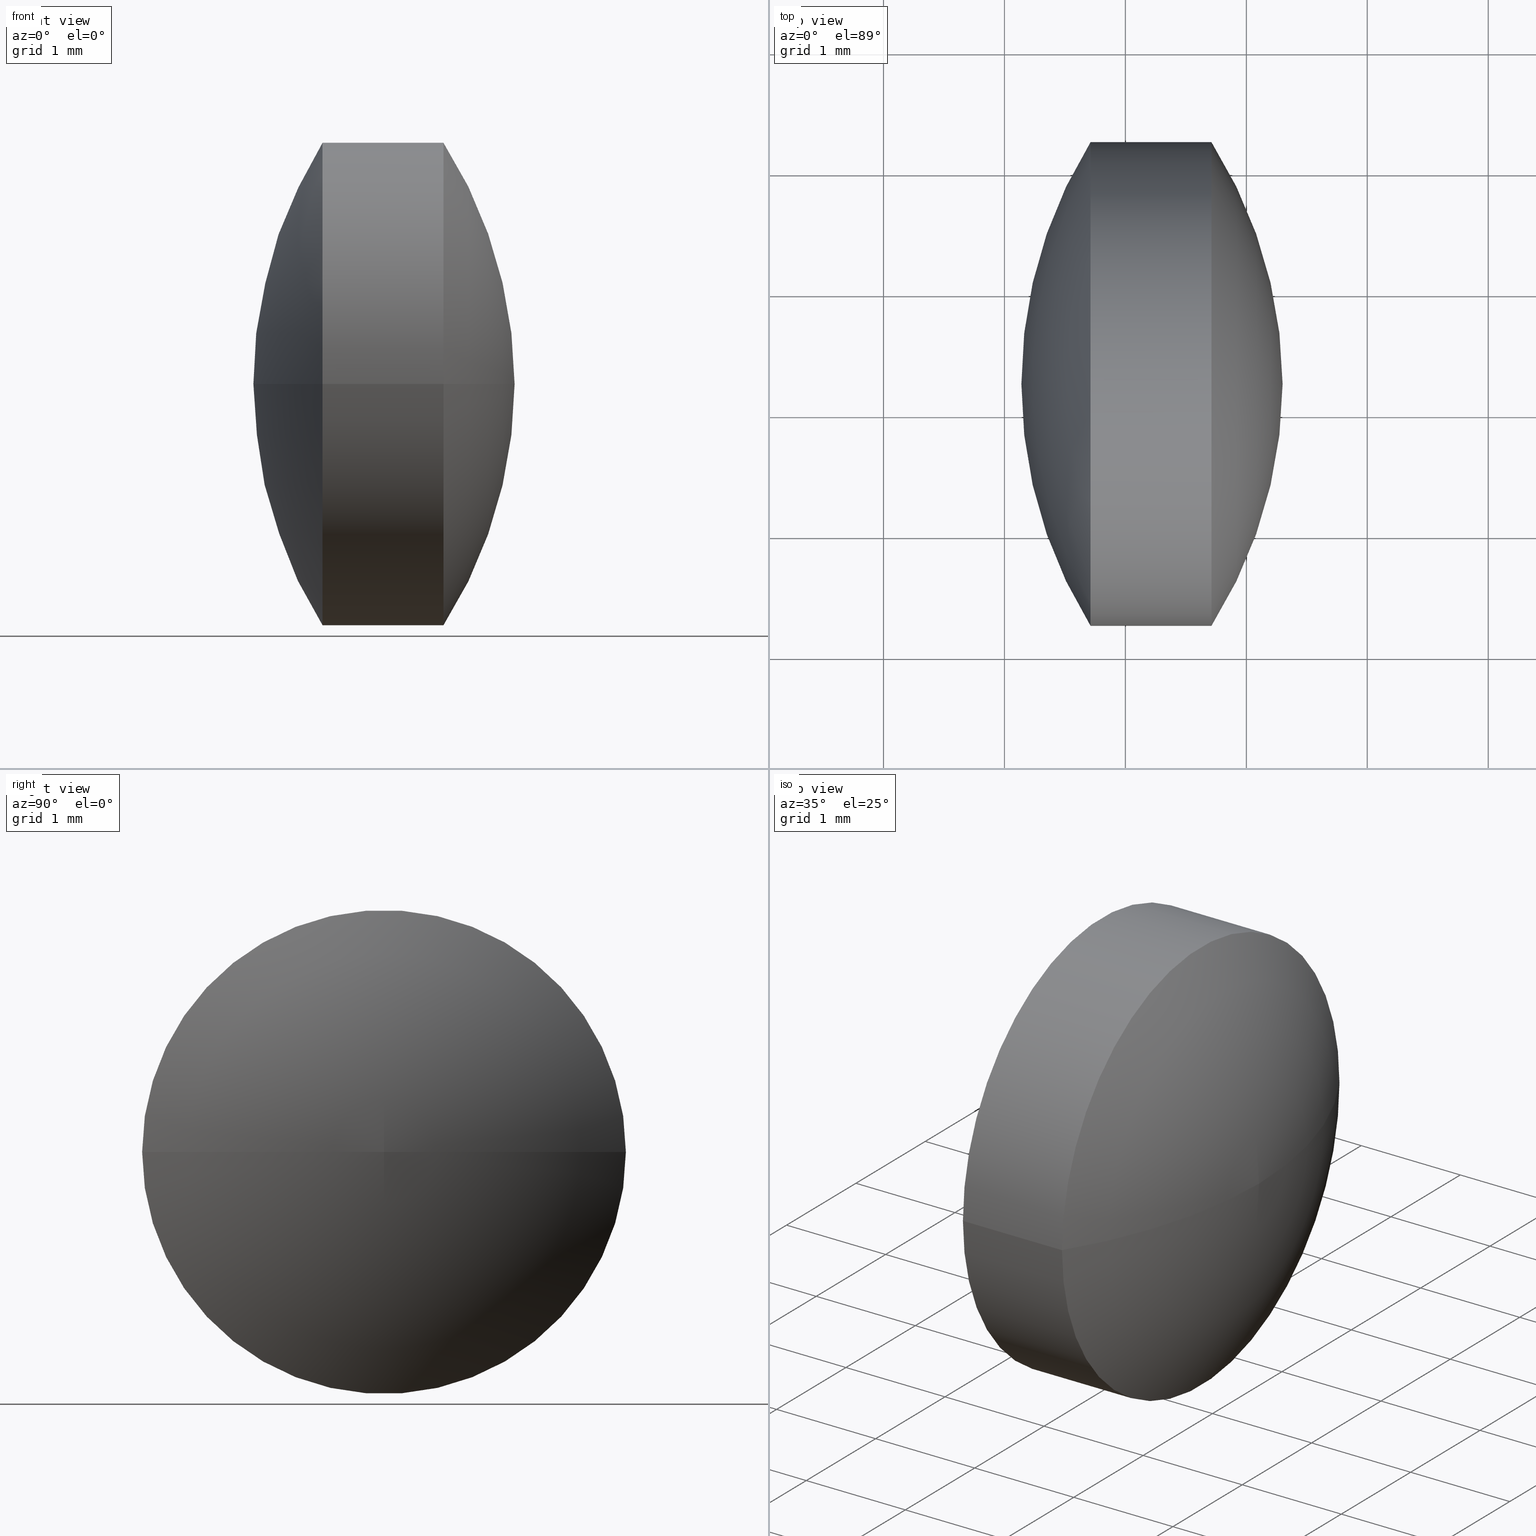
[diagram: canonical four-view strip — front | top / right | iso, engineering-drawing reading convention]
A machine part, canonical four-view strip (front | top / right | iso — engineering-drawing reading convention). The complete STEP part file that produces these views, byte-faithful:
ISO-10303-21;
HEADER;
FILE_DESCRIPTION (( 'STEP AP203' ),
    '1' );
FILE_NAME ('110004.STEP',
    '2019-06-24T05:50:44',
    ( '' ),
    ( '' ),
    'SwSTEP 2.0',
    'SolidWorks 2016',
    '' );
FILE_SCHEMA (( 'CONFIG_CONTROL_DESIGN' ));
ENDSEC;

DATA;
#1 = APPLICATION_PROTOCOL_DEFINITION ( 'international standard', 'config_control_design', 1994, #194 ) ;
#2 = ADVANCED_FACE ( 'NONE', ( #127 ), #168, .T. ) ;
#3 = PERSON_AND_ORGANIZATION ( #88, #112 ) ;
#4 = APPLICATION_CONTEXT ( 'configuration controlled 3d designs of mechanical parts and assemblies' ) ;
#5 = DIRECTION ( 'NONE',  ( 1.000000000000000000, 0.0000000000000000000, 0.0000000000000000000 ) ) ;
#6 = APPROVAL_STATUS ( 'not_yet_approved' ) ;
#7 = PERSON_AND_ORGANIZATION ( #88, #112 ) ;
#8 = APPROVAL_PERSON_ORGANIZATION ( #34, #302, #262 ) ;
#9 = AXIS2_PLACEMENT_3D ( 'NONE', #20, #253, #107 ) ;
#10 = APPROVAL_DATE_TIME ( #85, #137 ) ;
#11 = VERTEX_POINT ( 'NONE', #222 ) ;
#12 = DATE_AND_TIME ( #80, #99 ) ;
#13 = AXIS2_PLACEMENT_3D ( 'NONE', #216, #289, #5 ) ;
#14 = DIRECTION ( 'NONE',  ( -1.000000000000000000, 5.782411586589156700E-014, -0.0000000000000000000 ) ) ;
#15 = ORIENTED_EDGE ( 'NONE', *, *, #183, .F. ) ;
#16 = TOROIDAL_SURFACE ( 'NONE', #218, -0.02647124634640457200, 3.784021862624245900 ) ;
#17 = CARTESIAN_POINT ( 'NONE',  ( 7.515997151722468000, 5.268573223075914100, 0.0000000000000000000 ) ) ;
#18 = LOCAL_TIME ( 13, 50, 44.00000000000000000, #84 ) ;
#19 = PRODUCT_DEFINITION_FORMATION_WITH_SPECIFIED_SOURCE ( '�κ�', '', #38, .NOT_KNOWN. ) ;
#20 = CARTESIAN_POINT ( 'NONE',  ( 9.711656042240909100, 5.242101976729382600, 0.0000000000000000000 ) ) ;
#21 = PERSON_AND_ORGANIZATION ( #88, #112 ) ;
#22 = DESIGN_CONTEXT ( 'detailed design', #231, 'design' ) ;
#23 = PERSON_AND_ORGANIZATION ( #88, #112 ) ;
#24 = CARTESIAN_POINT ( 'NONE',  ( 12.92394828561172600, 5.242101976729416400, 0.0000000000000000000 ) ) ;
#25 = CARTESIAN_POINT ( 'NONE',  ( 7.515997151722466200, 5.242101976729509600, 0.0000000000000000000 ) ) ;
#26 = PERSON_AND_ORGANIZATION ( #88, #112 ) ;
#27 = AXIS2_PLACEMENT_3D ( 'NONE', #248, #74, #131 ) ;
#28 = ORIENTED_EDGE ( 'NONE', *, *, #267, .F. ) ;
#29 = CALENDAR_DATE ( 2019, 24, 6 ) ;
#30 = DATE_TIME_ROLE ( 'classification_date' ) ;
#31 = APPROVAL_STATUS ( 'not_yet_approved' ) ;
#32 = PERSON_AND_ORGANIZATION_ROLE ( 'creator' ) ;
#33 = AXIS2_PLACEMENT_3D ( 'NONE', #17, #126, #91 ) ;
#34 = PERSON_AND_ORGANIZATION ( #88, #112 ) ;
#35 = PERSON_AND_ORGANIZATION_ROLE ( 'design_owner' ) ;
#36 = APPROVAL ( #259, 'δָ��' ) ;
#37 = CARTESIAN_POINT ( 'NONE',  ( 10.71165604224090900, 5.242101976729324900, 0.0000000000000000000 ) ) ;
#38 = PRODUCT ( '110004', '110004', '', ( #286 ) ) ;
#39 = VERTEX_POINT ( 'NONE', #149 ) ;
#40 = ORIENTED_EDGE ( 'NONE', *, *, #204, .F. ) ;
#41 = CALENDAR_DATE ( 2019, 24, 6 ) ;
#42 = CIRCLE ( 'NONE', #114, 2.000000000000032900 ) ;
#43 = DIRECTION ( 'NONE',  ( 0.0000000000000000000, 0.0000000000000000000, -1.000000000000000000 ) ) ;
#44 = VERTEX_POINT ( 'NONE', #197 ) ;
#45 = AXIS2_PLACEMENT_3D ( 'NONE', #24, #207, #76 ) ;
#46 = PRODUCT_RELATED_PRODUCT_CATEGORY ( 'detail', '', ( #38 ) ) ;
#47 = DIRECTION ( 'NONE',  ( -5.811323644522123300E-014, -1.000000000000000000, 0.0000000000000000000 ) ) ;
#48 = CARTESIAN_POINT ( 'NONE',  ( 7.515997151722464400, 5.215630730383105100, -3.241792710756542700E-018 ) ) ;
#49 = ORIENTED_EDGE ( 'NONE', *, *, #200, .F. ) ;
#50 = CARTESIAN_POINT ( 'NONE',  ( 10.71165604224090900, 5.242101976729324900, 0.0000000000000000000 ) ) ;
#51 = CC_DESIGN_DATE_AND_TIME_ASSIGNMENT ( #295, #213, ( #53 ) ) ;
#52 = AXIS2_PLACEMENT_3D ( 'NONE', #274, #43, #61 ) ;
#53 = PRODUCT_DEFINITION ( 'δ֪', '', #106, #22 ) ;
#54 = PERSON_AND_ORGANIZATION_ROLE ( 'classification_officer' ) ;
#55 = APPLICATION_PROTOCOL_DEFINITION ( 'international standard', 'config_control_design', 1994, #4 ) ;
#56 = LOCAL_TIME ( 13, 50, 44.00000000000000000, #145 ) ;
#57 = PERSON_AND_ORGANIZATION_ROLE ( 'creator' ) ;
#58 = APPROVAL_ROLE ( '' ) ;
#59 = LINE ( 'NONE', #277, #290 ) ;
#60 = EDGE_LOOP ( 'NONE', ( #28, #124, #15 ) ) ;
#61 = DIRECTION ( 'NONE',  ( 5.776265727531612200E-014, 1.000000000000000000, 0.0000000000000000000 ) ) ;
#62 = AXIS2_PLACEMENT_3D ( 'NONE', #37, #196, #198 ) ;
#63 = PRODUCT ( '110004', '110004', '', ( #172 ) ) ;
#64 = DATE_AND_TIME ( #29, #87 ) ;
#65 = CC_DESIGN_APPROVAL ( #223, ( #106 ) ) ;
#66 = CARTESIAN_POINT ( 'NONE',  ( 9.139926422987191000, 3.242101976729353700, 0.0000000000000000000 ) ) ;
#67 = CC_DESIGN_PERSON_AND_ORGANIZATION_ASSIGNMENT ( #3, #57, ( #19 ) ) ;
#68 = ORIENTED_EDGE ( 'NONE', *, *, #113, .F. ) ;
#69 = CIRCLE ( 'NONE', #90, 3.784021862624418200 ) ;
#70 = CC_DESIGN_PERSON_AND_ORGANIZATION_ASSIGNMENT ( #202, #82, ( #106 ) ) ;
#71 = LOCAL_TIME ( 13, 50, 44.00000000000000000, #121 ) ;
#72 = DIRECTION ( 'NONE',  ( -1.000000000000000000, 5.782411586589156700E-014, -0.0000000000000000000 ) ) ;
#73 = PERSON_AND_ORGANIZATION ( #88, #112 ) ;
#74 = DIRECTION ( 'NONE',  ( -1.000000000000000000, 5.782411586589156700E-014, -0.0000000000000000000 ) ) ;
#75 = COORDINATED_UNIVERSAL_TIME_OFFSET ( 8, 0, .AHEAD. ) ;
#76 = DIRECTION ( 'NONE',  ( 0.0000000000000000000, 1.000000000000000000, 1.224646799147353200E-016 ) ) ;
#77 = PERSON_AND_ORGANIZATION ( #88, #112 ) ;
#78 = AXIS2_PLACEMENT_3D ( 'NONE', #50, #159, #101 ) ;
#79 = ORIENTED_EDGE ( 'NONE', *, *, #183, .T. ) ;
#80 = CALENDAR_DATE ( 2019, 24, 6 ) ;
#81 = APPLICATION_CONTEXT ( 'configuration controlled 3d designs of mechanical parts and assemblies' ) ;
#82 = PERSON_AND_ORGANIZATION_ROLE ( 'creator' ) ;
#83 = SPHERICAL_SURFACE ( 'NONE', #102, 3.784021862624419100 ) ;
#84 = COORDINATED_UNIVERSAL_TIME_OFFSET ( 8, 0, .AHEAD. ) ;
#85 = DATE_AND_TIME ( #136, #203 ) ;
#86 = CC_DESIGN_DATE_AND_TIME_ASSIGNMENT ( #135, #30, ( #275 ) ) ;
#87 = LOCAL_TIME ( 13, 50, 44.00000000000000000, #75 ) ;
#88 = PERSON ( 'δָ��', 'δָ��', 'δָ��', ('δָ��'), ('δָ��'), ('δָ��') ) ;
#89 = DATE_AND_TIME ( #92, #56 ) ;
#90 = AXIS2_PLACEMENT_3D ( 'NONE', #238, #224, #250 ) ;
#91 = DIRECTION ( 'NONE',  ( -1.000000000000000000, 0.0000000000000000000, 0.0000000000000000000 ) ) ;
#92 = CALENDAR_DATE ( 2019, 24, 6 ) ;
#93 = LOCAL_TIME ( 13, 50, 44.00000000000000000, #293 ) ;
#94 = CARTESIAN_POINT ( 'NONE',  ( 12.92394828561172600, 5.242101976729416400, 0.0000000000000000000 ) ) ;
#95 = CC_DESIGN_APPROVAL ( #137, ( #53 ) ) ;
#96 = EDGE_LOOP ( 'NONE', ( #68, #147, #49 ) ) ;
#97 = APPLICATION_PROTOCOL_DEFINITION ( 'international standard', 'config_control_design', 1994, #81 ) ;
#98 = DIRECTION ( 'NONE',  ( 1.000000000000000000, 0.0000000000000000000, 0.0000000000000000000 ) ) ;
#99 = LOCAL_TIME ( 13, 50, 44.00000000000000000, #133 ) ;
#100 = APPROVAL_STATUS ( 'not_yet_approved' ) ;
#101 = DIRECTION ( 'NONE',  ( -5.811323644522038700E-014, -1.000000000000000000, 0.0000000000000000000 ) ) ;
#102 = AXIS2_PLACEMENT_3D ( 'NONE', #94, #298, #108 ) ;
#103 = CYLINDRICAL_SURFACE ( 'NONE', #268, 2.000000000000062200 ) ;
#104 = COORDINATED_UNIVERSAL_TIME_OFFSET ( 8, 0, .AHEAD. ) ;
#105 = ORIENTED_EDGE ( 'NONE', *, *, #282, .T. ) ;
#106 = PRODUCT_DEFINITION_FORMATION_WITH_SPECIFIED_SOURCE ( '�κ�', '', #63, .NOT_KNOWN. ) ;
#107 = DIRECTION ( 'NONE',  ( -5.811323644522207800E-014, -1.000000000000000000, 0.0000000000000000000 ) ) ;
#108 = DIRECTION ( 'NONE',  ( 5.776265727531612200E-014, 1.000000000000000000, 0.0000000000000000000 ) ) ;
#109 = CIRCLE ( 'NONE', #33, 3.784021862624245900 ) ;
#110 = ORIENTED_EDGE ( 'NONE', *, *, #282, .F. ) ;
#111 = ORIENTED_EDGE ( 'NONE', *, *, #200, .T. ) ;
#112 = ORGANIZATION ( 'δָ��', 'δָ��', '' ) ;
#113 = EDGE_CURVE ( 'NONE', #182, #44, #109, .T. ) ;
#114 = AXIS2_PLACEMENT_3D ( 'NONE', #162, #291, #160 ) ;
#115 = DATE_TIME_ROLE ( 'creation_date' ) ;
#116 = APPROVAL_ROLE ( '' ) ;
#117 = APPROVAL_ROLE ( '' ) ;
#118 = ORIENTED_EDGE ( 'NONE', *, *, #171, .F. ) ;
#119 = DIRECTION ( 'NONE',  ( 0.0000000000000000000, 0.0000000000000000000, 1.000000000000000000 ) ) ;
#120 = CIRCLE ( 'NONE', #62, 2.000000000000091000 ) ;
#121 = COORDINATED_UNIVERSAL_TIME_OFFSET ( 8, 0, .AHEAD. ) ;
#122 = CC_DESIGN_SECURITY_CLASSIFICATION ( #275, ( #106 ) ) ;
#123 = ADVANCED_FACE ( 'NONE', ( #243 ), #240, .T. ) ;
#124 = ORIENTED_EDGE ( 'NONE', *, *, #113, .T. ) ;
#125 = APPROVAL_DATE_TIME ( #206, #223 ) ;
#126 = DIRECTION ( 'NONE',  ( 0.0000000000000000000, -0.0000000000000000000, -1.000000000000000000 ) ) ;
#127 = FACE_OUTER_BOUND ( 'NONE', #153, .T. ) ;
#128 = PERSON_AND_ORGANIZATION ( #88, #112 ) ;
#129 = APPROVAL_DATE_TIME ( #64, #36 ) ;
#130 = EDGE_CURVE ( 'NONE', #39, #138, #59, .T. ) ;
#131 = DIRECTION ( 'NONE',  ( -5.782411586589156700E-014, -1.000000000000000000, 0.0000000000000000000 ) ) ;
#132 = DIRECTION ( 'NONE',  ( -5.811323644522123300E-014, -1.000000000000000000, 0.0000000000000000000 ) ) ;
#133 = COORDINATED_UNIVERSAL_TIME_OFFSET ( 8, 0, .AHEAD. ) ;
#134 = DIRECTION ( 'NONE',  ( -1.000000000000000000, 5.782411586589156700E-014, -0.0000000000000000000 ) ) ;
#135 = DATE_AND_TIME ( #257, #278 ) ;
#136 = CALENDAR_DATE ( 2019, 24, 6 ) ;
#137 = APPROVAL ( #237, 'δָ��' ) ;
#138 = VERTEX_POINT ( 'NONE', #178 ) ;
#139 = ADVANCED_FACE ( 'NONE', ( #292 ), #180, .T. ) ;
#140 = ORIENTED_EDGE ( 'NONE', *, *, #151, .T. ) ;
#141 = CALENDAR_DATE ( 2019, 24, 6 ) ;
#142 = PERSON_AND_ORGANIZATION_ROLE ( 'classification_officer' ) ;
#143 = CARTESIAN_POINT ( 'NONE',  ( 0.0000000000000000000, 0.0000000000000000000, 0.0000000000000000000 ) ) ;
#144 = DATE_TIME_ROLE ( 'classification_date' ) ;
#145 = COORDINATED_UNIVERSAL_TIME_OFFSET ( 8, 0, .AHEAD. ) ;
#146 = VERTEX_POINT ( 'NONE', #251 ) ;
#147 = ORIENTED_EDGE ( 'NONE', *, *, #267, .T. ) ;
#148 = PERSON_AND_ORGANIZATION ( #88, #112 ) ;
#149 = CARTESIAN_POINT ( 'NONE',  ( 10.71165604224102300, 7.242101976729364800, 2.449293598294755200E-016 ) ) ;
#150 = DATE_AND_TIME ( #176, #161 ) ;
#151 = EDGE_CURVE ( 'NONE', #138, #11, #167, .T. ) ;
#152 = DIRECTION ( 'NONE',  ( -1.000000000000000000, 5.782411586589156700E-014, -0.0000000000000000000 ) ) ;
#153 = EDGE_LOOP ( 'NONE', ( #118, #105, #280 ) ) ;
#154 = CC_DESIGN_PERSON_AND_ORGANIZATION_ASSIGNMENT ( #73, #188, ( #53 ) ) ;
#155 = CARTESIAN_POINT ( 'NONE',  ( 9.139926422987308300, 5.242101976729416400, 0.0000000000000000000 ) ) ;
#156 = CARTESIAN_POINT ( 'NONE',  ( 9.139926422987308300, 5.242101976729416400, 0.0000000000000000000 ) ) ;
#157 = MANIFOLD_SOLID_BREP ( '��ת1', #244 ) ;
#158 = CC_DESIGN_DATE_AND_TIME_ASSIGNMENT ( #270, #144, ( #175 ) ) ;
#159 = DIRECTION ( 'NONE',  ( -1.000000000000000000, 5.782411586589156700E-014, -0.0000000000000000000 ) ) ;
#160 = DIRECTION ( 'NONE',  ( -5.811323644522207800E-014, -1.000000000000000000, 0.0000000000000000000 ) ) ;
#161 = LOCAL_TIME ( 13, 50, 44.00000000000000000, #189 ) ;
#162 = CARTESIAN_POINT ( 'NONE',  ( 9.711656042240909100, 5.242101976729382600, 0.0000000000000000000 ) ) ;
#163 = LOCAL_TIME ( 13, 50, 44.00000000000000000, #104 ) ;
#164 = CC_DESIGN_APPROVAL ( #192, ( #175 ) ) ;
#165 = ADVANCED_FACE ( 'NONE', ( #226 ), #83, .T. ) ;
#166 = SECURITY_CLASSIFICATION_LEVEL ( 'unclassified' ) ;
#167 = CIRCLE ( 'NONE', #9, 2.000000000000032900 ) ;
#168 = SPHERICAL_SURFACE ( 'NONE', #52, 3.784021862624419100 ) ;
#169 = APPROVAL_STATUS ( 'not_yet_approved' ) ;
#170 = PERSON_AND_ORGANIZATION_ROLE ( 'design_owner' ) ;
#171 = EDGE_CURVE ( 'NONE', #11, #146, #177, .T. ) ;
#172 = MECHANICAL_CONTEXT ( 'NONE', #4, 'mechanical' ) ;
#173 = CC_DESIGN_APPROVAL ( #36, ( #19 ) ) ;
#174 = ADVANCED_BREP_SHAPE_REPRESENTATION ( '110004', ( #157, #13 ), #283 ) ;
#175 = SECURITY_CLASSIFICATION ( '', '', #166 ) ;
#176 = CALENDAR_DATE ( 2019, 24, 6 ) ;
#177 = CIRCLE ( 'NONE', #45, 3.784021862624419100 ) ;
#178 = CARTESIAN_POINT ( 'NONE',  ( 9.711656042241026300, 7.242101976729417200, 0.0000000000000000000 ) ) ;
#179 = DIRECTION ( 'NONE',  ( -1.000000000000000000, 5.782411586589156700E-014, -0.0000000000000000000 ) ) ;
#180 = TOROIDAL_SURFACE ( 'NONE', #27, -0.02647124634640457200, 3.784021862624245900 ) ;
#181 = SHAPE_DEFINITION_REPRESENTATION ( #199, #174 ) ;
#182 = VERTEX_POINT ( 'NONE', #227 ) ;
#183 = EDGE_CURVE ( 'NONE', #39, #44, #255, .T. ) ;
#184 = LINE ( 'NONE', #66, #303 ) ;
#185 = PERSON_AND_ORGANIZATION ( #88, #112 ) ;
#186 = APPROVAL ( #31, 'δָ��' ) ;
#187 = ORIENTED_EDGE ( 'NONE', *, *, #130, .F. ) ;
#188 = PERSON_AND_ORGANIZATION_ROLE ( 'creator' ) ;
#189 = COORDINATED_UNIVERSAL_TIME_OFFSET ( 8, 0, .AHEAD. ) ;
#190 = PRODUCT_DEFINITION_SHAPE ( 'NONE', 'NONE',  #53 ) ;
#191 = APPLICATION_PROTOCOL_DEFINITION ( 'international standard', 'config_control_design', 1994, #231 ) ;
#192 = APPROVAL ( #6, 'δָ��' ) ;
#193 = CC_DESIGN_PERSON_AND_ORGANIZATION_ASSIGNMENT ( #252, #32, ( #272 ) ) ;
#194 = APPLICATION_CONTEXT ( 'configuration controlled 3d designs of mechanical parts and assemblies' ) ;
#195 = FACE_OUTER_BOUND ( 'NONE', #228, .T. ) ;
#196 = DIRECTION ( 'NONE',  ( -1.000000000000000000, 5.782411586589156700E-014, -0.0000000000000000000 ) ) ;
#197 = CARTESIAN_POINT ( 'NONE',  ( 10.71165604224079200, 3.242101976729284000, 0.0000000000000000000 ) ) ;
#198 = DIRECTION ( 'NONE',  ( -5.811323644522038700E-014, -1.000000000000000000, 0.0000000000000000000 ) ) ;
#199 = PRODUCT_DEFINITION_SHAPE ( 'NONE', 'NONE',  #272 ) ;
#200 = EDGE_CURVE ( 'NONE', #44, #39, #120, .T. ) ;
#201 = APPROVAL_PERSON_ORGANIZATION ( #21, #192, #214 ) ;
#202 = PERSON_AND_ORGANIZATION ( #88, #112 ) ;
#203 = LOCAL_TIME ( 13, 50, 44.00000000000000000, #266 ) ;
#204 = EDGE_CURVE ( 'NONE', #138, #146, #69, .T. ) ;
#205 = CC_DESIGN_APPROVAL ( #302, ( #275 ) ) ;
#206 = DATE_AND_TIME ( #41, #93 ) ;
#207 = DIRECTION ( 'NONE',  ( 7.081411840868978900E-030, 1.224646799147353200E-016, -1.000000000000000000 ) ) ;
#208 = APPROVAL_PERSON_ORGANIZATION ( #148, #186, #58 ) ;
#209 = CC_DESIGN_APPROVAL ( #186, ( #272 ) ) ;
#210 = CALENDAR_DATE ( 2019, 24, 6 ) ;
#211 =( LENGTH_UNIT ( ) NAMED_UNIT ( * ) SI_UNIT ( .MILLI., .METRE. ) );
#212 = ADVANCED_FACE ( 'NONE', ( #239 ), #16, .T. ) ;
#213 = DATE_TIME_ROLE ( 'creation_date' ) ;
#214 = APPROVAL_ROLE ( '' ) ;
#215 = PERSON_AND_ORGANIZATION ( #88, #112 ) ;
#216 = CARTESIAN_POINT ( 'NONE',  ( 0.0000000000000000000, 0.0000000000000000000, 0.0000000000000000000 ) ) ;
#217 = EDGE_CURVE ( 'NONE', #44, #11, #184, .T. ) ;
#218 = AXIS2_PLACEMENT_3D ( 'NONE', #25, #134, #269 ) ;
#219 = CALENDAR_DATE ( 2019, 24, 6 ) ;
#220 = PRODUCT_RELATED_PRODUCT_CATEGORY ( 'detail', '', ( #63 ) ) ;
#221 = PERSON_AND_ORGANIZATION ( #88, #112 ) ;
#222 = CARTESIAN_POINT ( 'NONE',  ( 9.711656042240793600, 3.242101976729567800, -2.449293598294747300E-016 ) ) ;
#223 = APPROVAL ( #100, 'δָ��' ) ;
#224 = DIRECTION ( 'NONE',  ( 0.0000000000000000000, 0.0000000000000000000, 1.000000000000000000 ) ) ;
#225 = CC_DESIGN_PERSON_AND_ORGANIZATION_ASSIGNMENT ( #221, #142, ( #175 ) ) ;
#226 = FACE_OUTER_BOUND ( 'NONE', #294, .T. ) ;
#227 = CARTESIAN_POINT ( 'NONE',  ( 11.29992642298734200, 5.242101976729291100, 0.0000000000000000000 ) ) ;
#228 = EDGE_LOOP ( 'NONE', ( #111, #271, #110, #249 ) ) ;
#229 = AXIS2_PLACEMENT_3D ( 'NONE', #155, #179, #47 ) ;
#230 = CIRCLE ( 'NONE', #246, 3.784021862624245900 ) ;
#231 = APPLICATION_CONTEXT ( 'configuration controlled 3d designs of mechanical parts and assemblies' ) ;
#232 = PERSON_AND_ORGANIZATION_ROLE ( 'design_supplier' ) ;
#233 = PERSON_AND_ORGANIZATION_ROLE ( 'design_supplier' ) ;
#234 = AXIS2_PLACEMENT_3D ( 'NONE', #143, #119, #98 ) ;
#235 =( NAMED_UNIT ( * ) PLANE_ANGLE_UNIT ( ) SI_UNIT ( $, .RADIAN. ) );
#236 = CC_DESIGN_PERSON_AND_ORGANIZATION_ASSIGNMENT ( #185, #54, ( #275 ) ) ;
#237 = APPROVAL_STATUS ( 'not_yet_approved' ) ;
#238 = CARTESIAN_POINT ( 'NONE',  ( 12.92394828561172600, 5.242101976729416400, 0.0000000000000000000 ) ) ;
#239 = FACE_OUTER_BOUND ( 'NONE', #60, .T. ) ;
#240 = CYLINDRICAL_SURFACE ( 'NONE', #229, 2.000000000000062200 ) ;
#241 = EDGE_LOOP ( 'NONE', ( #187, #79, #301, #284 ) ) ;
#242 = APPROVAL_DATE_TIME ( #12, #192 ) ;
#243 = FACE_OUTER_BOUND ( 'NONE', #241, .T. ) ;
#244 = CLOSED_SHELL ( 'NONE', ( #258, #139, #165, #2, #212, #123 ) ) ;
#245 = APPROVAL_PERSON_ORGANIZATION ( #7, #137, #117 ) ;
#246 = AXIS2_PLACEMENT_3D ( 'NONE', #48, #300, #299 ) ;
#247 = APPROVAL_DATE_TIME ( #89, #186 ) ;
#248 = CARTESIAN_POINT ( 'NONE',  ( 7.515997151722466200, 5.242101976729509600, 0.0000000000000000000 ) ) ;
#249 = ORIENTED_EDGE ( 'NONE', *, *, #217, .F. ) ;
#250 = DIRECTION ( 'NONE',  ( 1.000000000000000000, 0.0000000000000000000, 0.0000000000000000000 ) ) ;
#251 = CARTESIAN_POINT ( 'NONE',  ( 9.139926422987308300, 5.242101976729635700, 0.0000000000000000000 ) ) ;
#252 = PERSON_AND_ORGANIZATION ( #88, #112 ) ;
#253 = DIRECTION ( 'NONE',  ( -1.000000000000000000, 5.782411586589156700E-014, -0.0000000000000000000 ) ) ;
#254 = CC_DESIGN_PERSON_AND_ORGANIZATION_ASSIGNMENT ( #215, #170, ( #38 ) ) ;
#255 = CIRCLE ( 'NONE', #78, 2.000000000000091000 ) ;
#256 = CC_DESIGN_PERSON_AND_ORGANIZATION_ASSIGNMENT ( #128, #35, ( #63 ) ) ;
#257 = CALENDAR_DATE ( 2019, 24, 6 ) ;
#258 = ADVANCED_FACE ( 'NONE', ( #195 ), #103, .T. ) ;
#259 = APPROVAL_STATUS ( 'not_yet_approved' ) ;
#260 = CC_DESIGN_PERSON_AND_ORGANIZATION_ASSIGNMENT ( #77, #232, ( #19 ) ) ;
#261 = PERSON_AND_ORGANIZATION ( #88, #112 ) ;
#262 = APPROVAL_ROLE ( '' ) ;
#263 =( NAMED_UNIT ( * ) SI_UNIT ( $, .STERADIAN. ) SOLID_ANGLE_UNIT ( ) );
#264 = SECURITY_CLASSIFICATION_LEVEL ( 'unclassified' ) ;
#265 = APPROVAL_PERSON_ORGANIZATION ( #261, #36, #285 ) ;
#266 = COORDINATED_UNIVERSAL_TIME_OFFSET ( 8, 0, .AHEAD. ) ;
#267 = EDGE_CURVE ( 'NONE', #182, #39, #230, .T. ) ;
#268 = AXIS2_PLACEMENT_3D ( 'NONE', #156, #152, #132 ) ;
#269 = DIRECTION ( 'NONE',  ( -5.782411586589156700E-014, -1.000000000000000000, 0.0000000000000000000 ) ) ;
#270 = DATE_AND_TIME ( #210, #71 ) ;
#271 = ORIENTED_EDGE ( 'NONE', *, *, #130, .T. ) ;
#272 = PRODUCT_DEFINITION ( 'δ֪', '', #19, #296 ) ;
#273 = COORDINATED_UNIVERSAL_TIME_OFFSET ( 8, 0, .AHEAD. ) ;
#274 = CARTESIAN_POINT ( 'NONE',  ( 12.92394828561172600, 5.242101976729416400, 0.0000000000000000000 ) ) ;
#275 = SECURITY_CLASSIFICATION ( '', '', #264 ) ;
#276 = ORIENTED_EDGE ( 'NONE', *, *, #171, .T. ) ;
#277 = CARTESIAN_POINT ( 'NONE',  ( 9.139926422987423700, 7.242101976729477600, 2.449293598294782300E-016 ) ) ;
#278 = LOCAL_TIME ( 13, 50, 44.00000000000000000, #273 ) ;
#279 = CC_DESIGN_SECURITY_CLASSIFICATION ( #175, ( #19 ) ) ;
#280 = ORIENTED_EDGE ( 'NONE', *, *, #204, .T. ) ;
#281 = APPROVAL_DATE_TIME ( #304, #302 ) ;
#282 = EDGE_CURVE ( 'NONE', #11, #138, #42, .T. ) ;
#283 =( GEOMETRIC_REPRESENTATION_CONTEXT ( 3 ) GLOBAL_UNCERTAINTY_ASSIGNED_CONTEXT ( ( #297 ) ) GLOBAL_UNIT_ASSIGNED_CONTEXT ( ( #211, #235, #263 ) ) REPRESENTATION_CONTEXT ( 'NONE', 'WORKASPACE' ) );
#284 = ORIENTED_EDGE ( 'NONE', *, *, #151, .F. ) ;
#285 = APPROVAL_ROLE ( '' ) ;
#286 = MECHANICAL_CONTEXT ( 'NONE', #194, 'mechanical' ) ;
#287 = CC_DESIGN_PERSON_AND_ORGANIZATION_ASSIGNMENT ( #26, #233, ( #106 ) ) ;
#288 = CC_DESIGN_DATE_AND_TIME_ASSIGNMENT ( #150, #115, ( #272 ) ) ;
#289 = DIRECTION ( 'NONE',  ( 0.0000000000000000000, 0.0000000000000000000, 1.000000000000000000 ) ) ;
#290 = VECTOR ( 'NONE', #72, 1000.000000000000000 ) ;
#291 = DIRECTION ( 'NONE',  ( -1.000000000000000000, 5.782411586589156700E-014, -0.0000000000000000000 ) ) ;
#292 = FACE_OUTER_BOUND ( 'NONE', #96, .T. ) ;
#293 = COORDINATED_UNIVERSAL_TIME_OFFSET ( 8, 0, .AHEAD. ) ;
#294 = EDGE_LOOP ( 'NONE', ( #140, #276, #40 ) ) ;
#295 = DATE_AND_TIME ( #219, #163 ) ;
#296 = DESIGN_CONTEXT ( 'detailed design', #81, 'design' ) ;
#297 = UNCERTAINTY_MEASURE_WITH_UNIT (LENGTH_MEASURE( 1.000000000000000100E-005 ), #211, 'distance_accuracy_value', 'NONE');
#298 = DIRECTION ( 'NONE',  ( 0.0000000000000000000, 0.0000000000000000000, -1.000000000000000000 ) ) ;
#299 = DIRECTION ( 'NONE',  ( 0.0000000000000000000, -1.000000000000000000, -1.224646799147353200E-016 ) ) ;
#300 = DIRECTION ( 'NONE',  ( -7.081411840868978900E-030, -1.224646799147353200E-016, 1.000000000000000000 ) ) ;
#301 = ORIENTED_EDGE ( 'NONE', *, *, #217, .T. ) ;
#302 = APPROVAL ( #169, 'δָ��' ) ;
#303 = VECTOR ( 'NONE', #14, 1000.000000000000000 ) ;
#304 = DATE_AND_TIME ( #141, #18 ) ;
#305 = APPROVAL_PERSON_ORGANIZATION ( #23, #223, #116 ) ;
ENDSEC;
END-ISO-10303-21;
